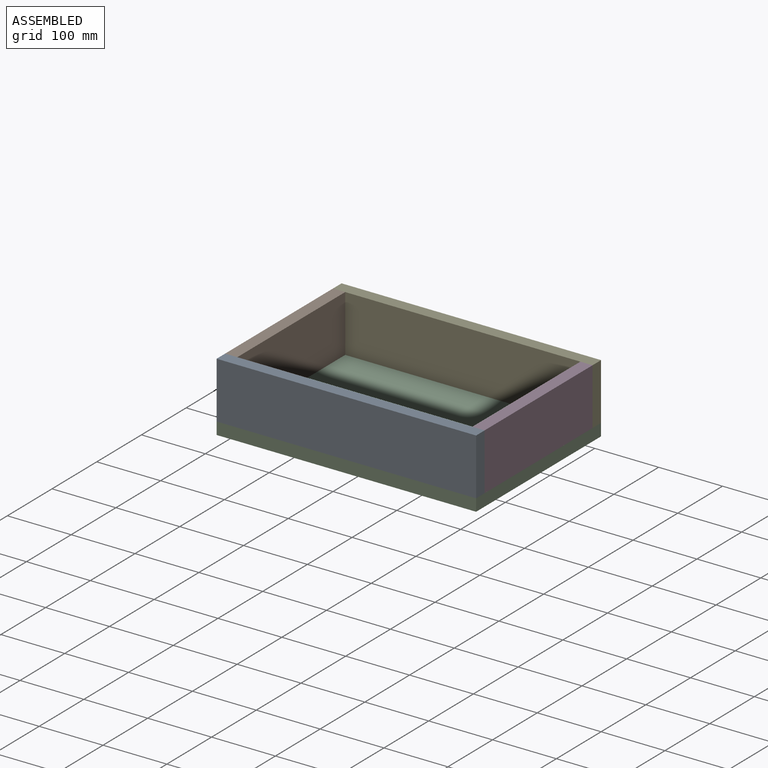
[diagram: assembled view]
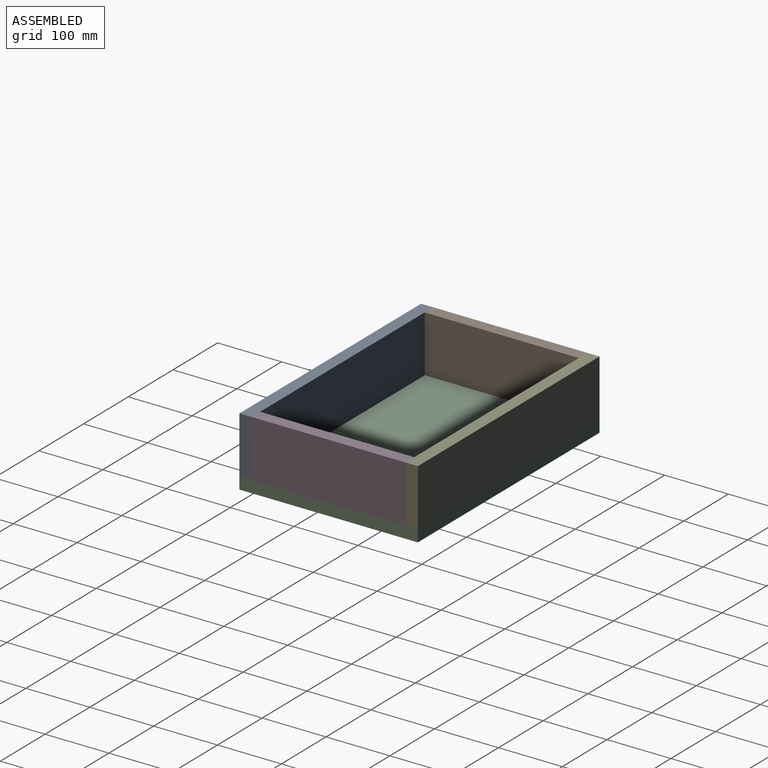
[diagram: assembled view, second angle]
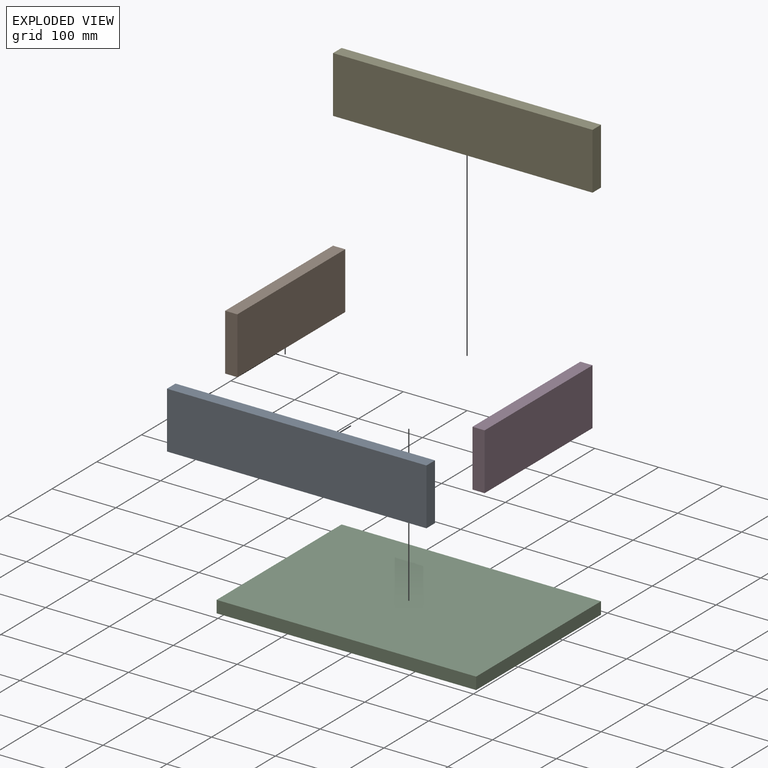
[diagram: exploded view]
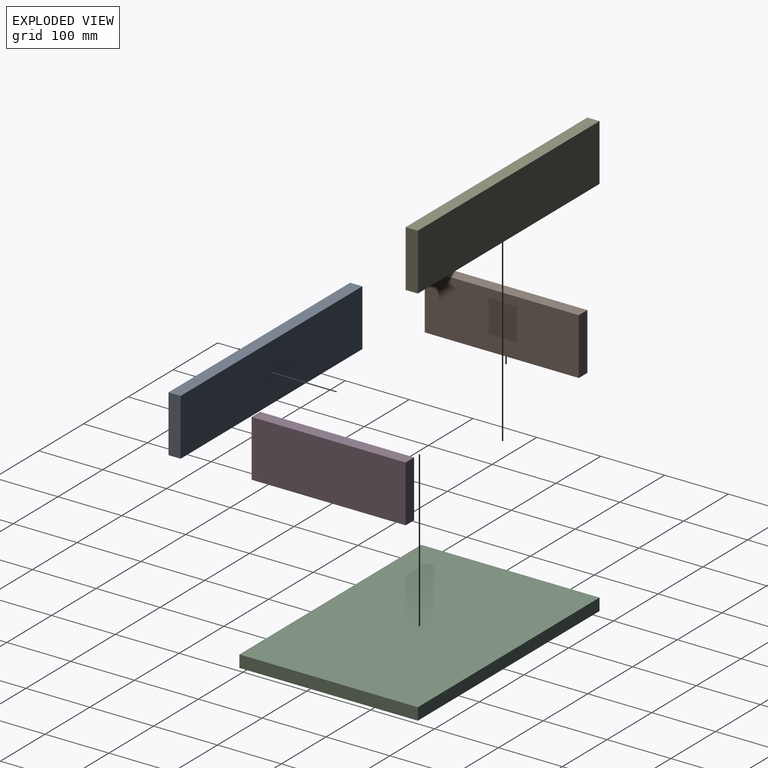
[diagram: exploded view, second angle]
ASSEMBLY  parts=5 mates=4
PART A: 6 faces, bbox 406.4x19.1x88.9 mm
  f0: plane 406.4x19.05mm, normal (0,0,1), area 7741.9mm2, adj f1,f3,f4,f5
  f1: plane 88.9x19.05mm, normal (-1,0,0), area 1693.5mm2, adj f0,f2,f4,f5
  f2: plane 406.4x19.05mm, normal (0,0,-1), area 7741.9mm2, adj f1,f3,f4,f5
  f3: plane 88.9x19.05mm, normal (1,0,0), area 1693.5mm2, adj f0,f2,f4,f5
  f4: plane 406.4x88.9mm, normal (0,-1,0), area 36129mm2, adj f0,f1,f2,f3
  f5: plane 406.4x88.9mm, normal (0,1,0), area 36129mm2, adj f0,f1,f2,f3
PART B: 6 faces, bbox 19.1x241.3x88.9 mm
  f0: plane 241.3x19.05mm, normal (0,0,1), area 4596.8mm2, adj f1,f3,f4,f5
  f1: plane 88.9x19.05mm, normal (0,-1,0), area 1693.5mm2, adj f0,f2,f4,f5
  f2: plane 241.3x19.05mm, normal (0,0,-1), area 4596.8mm2, adj f1,f3,f4,f5
  f3: plane 88.9x19.05mm, normal (0,1,0), area 1693.5mm2, adj f0,f2,f4,f5
  f4: plane 241.3x88.9mm, normal (1,0,0), area 21451.6mm2, adj f0,f1,f2,f3
  f5: plane 241.3x88.9mm, normal (-1,0,0), area 21451.6mm2, adj f0,f1,f2,f3
PART C: 6 faces, bbox 406.4x279.4x19.1 mm
  f0: plane 406.4x19.05mm, normal (0,1,0), area 7741.9mm2, adj f1,f3,f4,f5
  f1: plane 279.4x19.05mm, normal (-1,0,0), area 5322.6mm2, adj f0,f2,f4,f5
  f2: plane 406.4x19.05mm, normal (0,-1,0), area 7741.9mm2, adj f1,f3,f4,f5
  f3: plane 279.4x19.05mm, normal (1,0,0), area 5322.6mm2, adj f0,f2,f4,f5
  f4: plane 406.4x279.4mm, normal (0,0,1), area 113548.2mm2, adj f0,f1,f2,f3
  f5: plane 406.4x279.4mm, normal (0,0,-1), area 113548.2mm2, adj f0,f1,f2,f3
PART D: same geometry as B
PART E: same geometry as A
PLACE A t=(2.79,-82.69,92.11)mm
PLACE B t=(-200.87,31.03,69.39)mm
PLACE C at identity
PLACE D t=(186.48,31.03,69.39)mm
PLACE E t=(2.79,177.66,92.11)mm
MATE planar D.f2 <-> A.f2  axis (0,0,-1) through (205.53,-82.69,19.05)mm
MATE planar E.f2 <-> C.f4  axis (0,0,1) through (205.53,177.66,19.05)mm
MATE planar A.f2 <-> C.f4  axis (0,0,1) through (205.53,-101.74,19.05)mm
MATE planar B.f2 <-> E.f2  axis (0,0,-1) through (-200.87,158.61,19.05)mm
